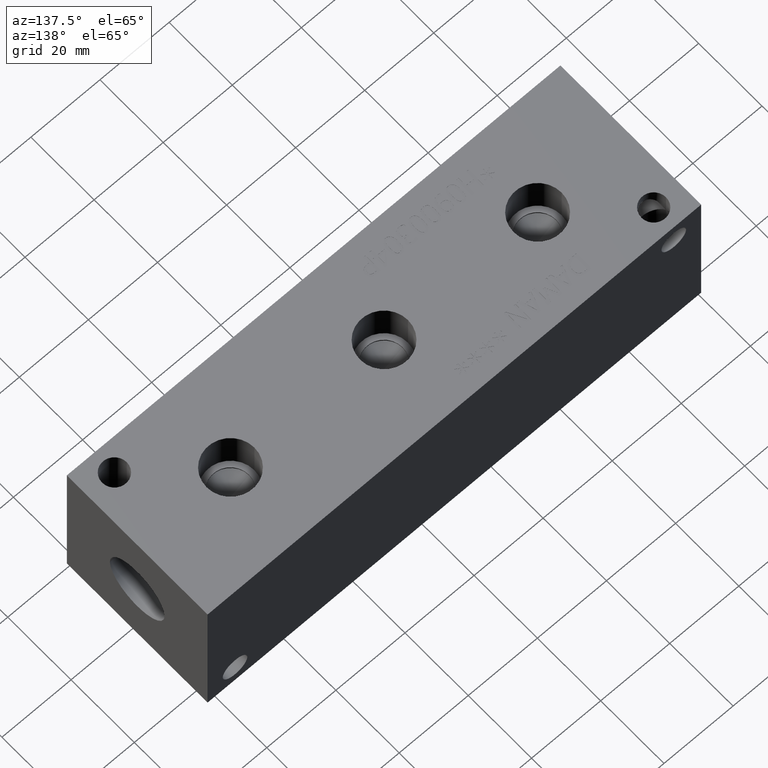
[diagram: clean part render]
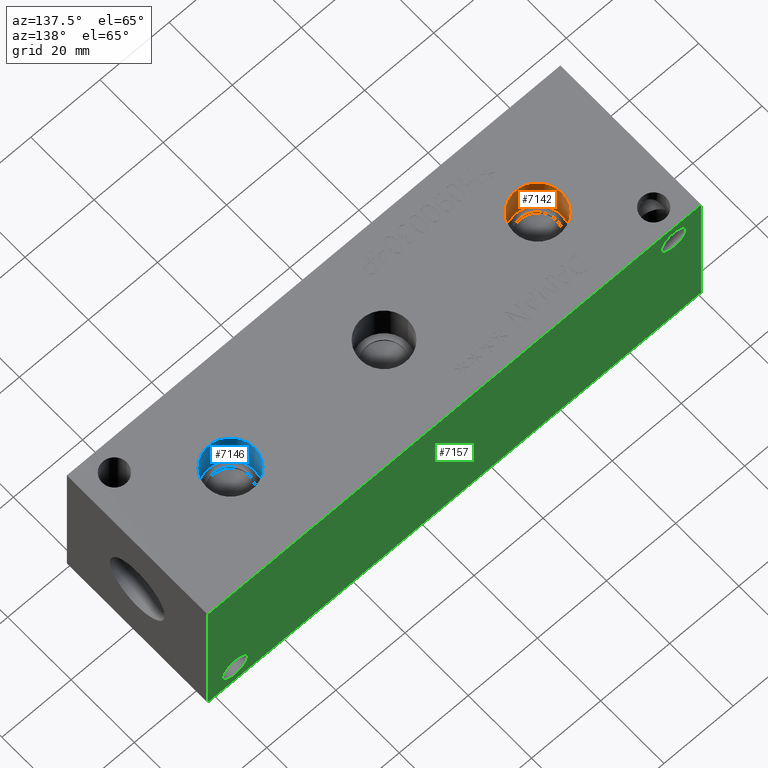
[diagram: same view with three faces highlighted in distinct colors, each labeled with its STEP entity id]
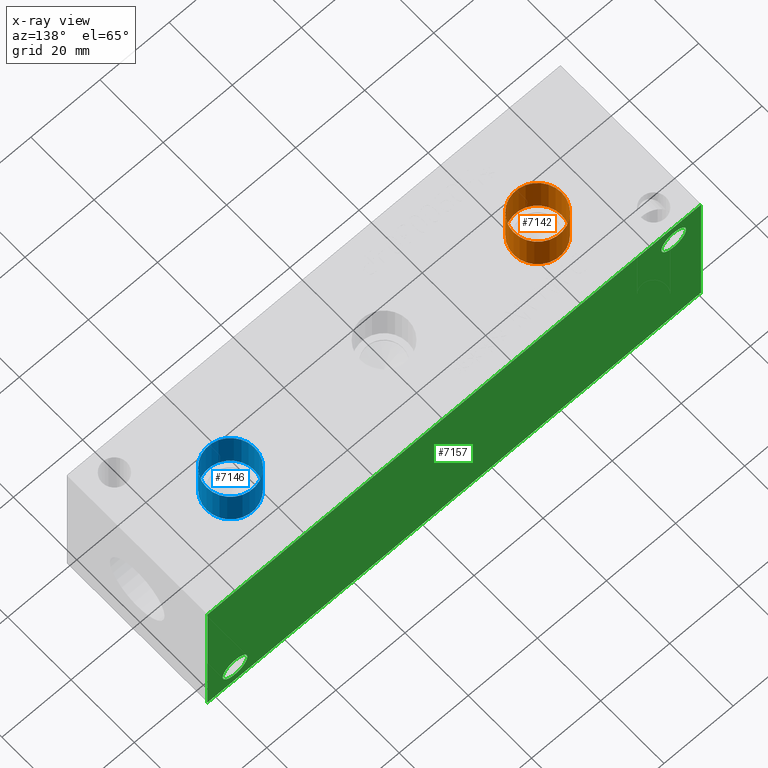
[diagram: x-ray of the same camera — body ghosted, the three highlighted faces saturated]
A machine part, auxiliary view with three faces highlighted in distinct colors.
The next image is the same camera in x-ray (body ghosted, the three faces saturated) — at least one of them is partly hidden behind the body in this view.
Their STEP definitions:

[orange] entity #7142 — the highlighted cylindrical surface (bore or boss wall) has radius 6.9342 mm, axis along (0, 0, 1).
#38=CYLINDRICAL_SURFACE('',#7473,6.9342);
#60=CIRCLE('',#7255,6.9342);
#61=CIRCLE('',#7256,6.9342);
#100=CIRCLE('',#7470,6.9342);
#101=CIRCLE('',#7471,6.9342);
#745=FACE_OUTER_BOUND('',#1146,.T.);
#1146=EDGE_LOOP('',(#6285,#6286,#6287,#6288,#6289,#6290));
#1862=LINE('',#12136,#2563);
#2563=VECTOR('',#8792,6.9342);
#3226=VERTEX_POINT('',#11325);
#3227=VERTEX_POINT('',#11326);
#3419=VERTEX_POINT('',#12129);
#3420=VERTEX_POINT('',#12130);
#4044=EDGE_CURVE('',#3226,#3227,#60,.T.);
#4045=EDGE_CURVE('',#3227,#3226,#61,.T.);
#4388=EDGE_CURVE('',#3419,#3420,#100,.T.);
#4389=EDGE_CURVE('',#3420,#3419,#101,.T.);
#4391=EDGE_CURVE('',#3227,#3420,#1862,.T.);
#6285=ORIENTED_EDGE('',*,*,#4044,.F.);
#6286=ORIENTED_EDGE('',*,*,#4045,.F.);
#6287=ORIENTED_EDGE('',*,*,#4391,.T.);
#6288=ORIENTED_EDGE('',*,*,#4388,.F.);
#6289=ORIENTED_EDGE('',*,*,#4389,.F.);
#6290=ORIENTED_EDGE('',*,*,#4391,.F.);
#7142=ADVANCED_FACE('',(#745),#38,.F.);
#7255=AXIS2_PLACEMENT_3D('',#11327,#8070,#8071);
#7256=AXIS2_PLACEMENT_3D('',#11328,#8072,#8073);
#7470=AXIS2_PLACEMENT_3D('',#12131,#8784,#8785);
#7471=AXIS2_PLACEMENT_3D('',#12132,#8786,#8787);
#7473=AXIS2_PLACEMENT_3D('',#12135,#8790,#8791);
#8070=DIRECTION('center_axis',(0.,0.,-1.));
#8071=DIRECTION('ref_axis',(1.,0.,0.));
#8072=DIRECTION('center_axis',(0.,0.,-1.));
#8073=DIRECTION('ref_axis',(1.,0.,0.));
#8784=DIRECTION('center_axis',(0.,0.,1.));
#8785=DIRECTION('ref_axis',(1.,0.,0.));
#8786=DIRECTION('center_axis',(0.,0.,1.));
#8787=DIRECTION('ref_axis',(1.,0.,0.));
#8790=DIRECTION('center_axis',(0.,0.,1.));
#8791=DIRECTION('ref_axis',(1.,0.,0.));
#8792=DIRECTION('',(0.,0.,-1.));
#11325=CARTESIAN_POINT('',(33.909,22.225,44.45));
#11326=CARTESIAN_POINT('',(20.0406,22.225,44.45));
#11327=CARTESIAN_POINT('Origin',(26.9748,22.225,44.45));
#11328=CARTESIAN_POINT('Origin',(26.9748,22.225,44.45));
#12129=CARTESIAN_POINT('',(33.909,22.225,33.0454));
#12130=CARTESIAN_POINT('',(20.0406,22.225,33.0454));
#12131=CARTESIAN_POINT('Origin',(26.9748,22.225,33.0454));
#12132=CARTESIAN_POINT('Origin',(26.9748,22.225,33.0454));
#12135=CARTESIAN_POINT('Origin',(26.9748,22.225,38.7477));
#12136=CARTESIAN_POINT('',(20.0406,22.225,38.7477));

[blue] entity #7146 — the highlighted cylindrical surface (bore or boss wall) has radius 6.9342 mm, axis along (0, 0, 1).
#40=CYLINDRICAL_SURFACE('',#7482,6.9342);
#62=CIRCLE('',#7257,6.9342);
#63=CIRCLE('',#7258,6.9342);
#105=CIRCLE('',#7479,6.9342);
#106=CIRCLE('',#7480,6.9342);
#749=FACE_OUTER_BOUND('',#1151,.T.);
#1151=EDGE_LOOP('',(#6303,#6304,#6305,#6306,#6307,#6308));
#1865=LINE('',#12154,#2566);
#2566=VECTOR('',#8813,6.9342);
#3228=VERTEX_POINT('',#11329);
#3229=VERTEX_POINT('',#11330);
#3425=VERTEX_POINT('',#12147);
#3426=VERTEX_POINT('',#12148);
#4046=EDGE_CURVE('',#3228,#3229,#62,.T.);
#4047=EDGE_CURVE('',#3229,#3228,#63,.T.);
#4396=EDGE_CURVE('',#3425,#3426,#105,.T.);
#4397=EDGE_CURVE('',#3426,#3425,#106,.T.);
#4399=EDGE_CURVE('',#3229,#3426,#1865,.T.);
#6303=ORIENTED_EDGE('',*,*,#4046,.F.);
#6304=ORIENTED_EDGE('',*,*,#4047,.F.);
#6305=ORIENTED_EDGE('',*,*,#4399,.T.);
#6306=ORIENTED_EDGE('',*,*,#4396,.F.);
#6307=ORIENTED_EDGE('',*,*,#4397,.F.);
#6308=ORIENTED_EDGE('',*,*,#4399,.F.);
#7146=ADVANCED_FACE('',(#749),#40,.F.);
#7257=AXIS2_PLACEMENT_3D('',#11331,#8074,#8075);
#7258=AXIS2_PLACEMENT_3D('',#11332,#8076,#8077);
#7479=AXIS2_PLACEMENT_3D('',#12149,#8805,#8806);
#7480=AXIS2_PLACEMENT_3D('',#12150,#8807,#8808);
#7482=AXIS2_PLACEMENT_3D('',#12153,#8811,#8812);
#8074=DIRECTION('center_axis',(0.,0.,-1.));
#8075=DIRECTION('ref_axis',(1.,0.,0.));
#8076=DIRECTION('center_axis',(0.,0.,-1.));
#8077=DIRECTION('ref_axis',(1.,0.,0.));
#8805=DIRECTION('center_axis',(0.,0.,1.));
#8806=DIRECTION('ref_axis',(1.,0.,0.));
#8807=DIRECTION('center_axis',(0.,0.,1.));
#8808=DIRECTION('ref_axis',(1.,0.,0.));
#8811=DIRECTION('center_axis',(0.,0.,1.));
#8812=DIRECTION('ref_axis',(1.,0.,0.));
#8813=DIRECTION('',(0.,0.,-1.));
#11329=CARTESIAN_POINT('',(122.809,22.225,44.45));
#11330=CARTESIAN_POINT('',(108.9406,22.225,44.45));
#11331=CARTESIAN_POINT('Origin',(115.8748,22.225,44.45));
#11332=CARTESIAN_POINT('Origin',(115.8748,22.225,44.45));
#12147=CARTESIAN_POINT('',(122.809,22.225,33.0454));
#12148=CARTESIAN_POINT('',(108.9406,22.225,33.0454));
#12149=CARTESIAN_POINT('Origin',(115.8748,22.225,33.0454));
#12150=CARTESIAN_POINT('Origin',(115.8748,22.225,33.0454));
#12153=CARTESIAN_POINT('Origin',(115.8748,22.225,38.7477));
#12154=CARTESIAN_POINT('',(108.9406,22.225,38.7477));

[green] entity #7157 — the highlighted planar face has unit normal (0, 1, 0).
#87=CIRCLE('',#7441,3.5687);
#90=CIRCLE('',#7450,3.5687);
#165=FACE_BOUND('',#1166,.T.);
#166=FACE_BOUND('',#1167,.T.);
#398=PLANE('',#7507);
#760=FACE_OUTER_BOUND('',#1165,.T.);
#1165=EDGE_LOOP('',(#6356,#6357,#6358,#6359));
#1166=EDGE_LOOP('',(#6360));
#1167=EDGE_LOOP('',(#6361));
#1462=LINE('',#11063,#2163);
#1875=LINE('',#12206,#2576);
#1876=LINE('',#12209,#2577);
#1877=LINE('',#12210,#2578);
#2163=VECTOR('',#7942,10.);
#2576=VECTOR('',#8871,10.);
#2577=VECTOR('',#8874,10.);
#2578=VECTOR('',#8875,10.);
#3100=VERTEX_POINT('',#11060);
#3101=VERTEX_POINT('',#11062);
#3402=VERTEX_POINT('',#12072);
#3407=VERTEX_POINT('',#12088);
#3444=VERTEX_POINT('',#12202);
#3446=VERTEX_POINT('',#12208);
#3918=EDGE_CURVE('',#3100,#3101,#1462,.T.);
#4361=EDGE_CURVE('',#3402,#3402,#87,.T.);
#4370=EDGE_CURVE('',#3407,#3407,#90,.T.);
#4423=EDGE_CURVE('',#3444,#3101,#1875,.T.);
#4424=EDGE_CURVE('',#3446,#3444,#1876,.T.);
#4425=EDGE_CURVE('',#3446,#3100,#1877,.T.);
#6356=ORIENTED_EDGE('',*,*,#4424,.T.);
#6357=ORIENTED_EDGE('',*,*,#4423,.T.);
#6358=ORIENTED_EDGE('',*,*,#3918,.F.);
#6359=ORIENTED_EDGE('',*,*,#4425,.F.);
#6360=ORIENTED_EDGE('',*,*,#4361,.T.);
#6361=ORIENTED_EDGE('',*,*,#4370,.T.);
#7157=ADVANCED_FACE('',(#760,#165,#166),#398,.T.);
#7441=AXIS2_PLACEMENT_3D('',#12074,#8716,#8717);
#7450=AXIS2_PLACEMENT_3D('',#12090,#8736,#8737);
#7507=AXIS2_PLACEMENT_3D('',#12207,#8872,#8873);
#7942=DIRECTION('',(-1.,0.,0.));
#8716=DIRECTION('center_axis',(0.,-1.,0.));
#8717=DIRECTION('ref_axis',(1.,0.,0.));
#8736=DIRECTION('center_axis',(0.,-1.,0.));
#8737=DIRECTION('ref_axis',(1.,0.,0.));
#8871=DIRECTION('',(0.,0.,1.));
#8872=DIRECTION('center_axis',(0.,1.,0.));
#8873=DIRECTION('ref_axis',(-1.,0.,0.));
#8874=DIRECTION('',(-1.,0.,0.));
#8875=DIRECTION('',(0.,0.,1.));
#11060=CARTESIAN_POINT('',(142.875,44.45,44.45));
#11062=CARTESIAN_POINT('',(0.,44.45,44.45));
#11063=CARTESIAN_POINT('',(142.875,44.45,44.45));
#12072=CARTESIAN_POINT('',(4.3561,44.45,38.1));
#12074=CARTESIAN_POINT('Origin',(7.9248,44.45,38.1));
#12088=CARTESIAN_POINT('',(131.3561,44.45,6.35));
#12090=CARTESIAN_POINT('Origin',(134.9248,44.45,6.35));
#12202=CARTESIAN_POINT('',(0.,44.45,0.));
#12206=CARTESIAN_POINT('',(0.,44.45,0.));
#12207=CARTESIAN_POINT('Origin',(142.875,44.45,0.));
#12208=CARTESIAN_POINT('',(142.875,44.45,0.));
#12209=CARTESIAN_POINT('',(142.875,44.45,0.));
#12210=CARTESIAN_POINT('',(142.875,44.45,0.));